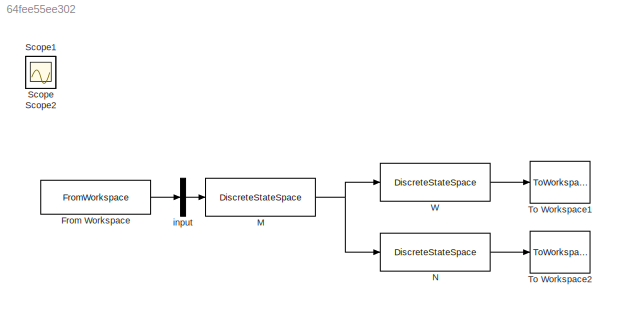
MODEL slx_64fee55ee302
KIND model
CONFIG AbsTol = auto
CONFIG EnableMultiTasking = off
CONFIG FixedStep = auto
CONFIG MaxStep = auto
CONFIG MinStep = auto
CONFIG RelTol = 1e-3
CONFIG SampleTimeConstraint = Unconstrained
CONFIG Solver = VariableStepAuto
CONFIG SolverName = VariableStepAuto
CONFIG StartTime = 0.0
CONFIG StopTime = Reference_time
BLOCK [FromWorkspace] From Workspace
  SampleTime = Ts
  VariableName = Reference_inputdata
  ZeroCross = on
BLOCK [DiscreteStateSpace] M
  A = plant.M.A
  B = plant.M.B
  C = plant.M.C
  D = plant.M.D
  SampleTime = -1
BLOCK [DiscreteStateSpace] N
  A = plant.N.A
  B = plant.N.B
  C = plant.N.C
  D = plant.N.D
  SampleTime = -1
BLOCK [Scope] Scope
  IOType = viewer
  NumInputPorts = 1
  Ports = []
  ScopeSpecificationString = Simulink.scopes.TimeScopeBlockCfg('CurrentConfiguration', extmgr.ConfigurationSet(extmgr.Configuration('Core','General UI',true),extmgr.Configuration('Core','Source UI',true),extmgr.Configuration('Sources','WiredSimulink',true),extmgr.Configuration('Visuals','Time Domain',true,'SerializedDisplays',{struct('MinYLimReal','-31.87499','MaxYLimReal','36.87499','YLabelReal','','MinYLimMag','0.00000','Ma...<+1331ch>
BLOCK [Scope] Scope1
  IOType = viewer
  NumInputPorts = 1
  Ports = []
  ScopeSpecificationString = Simulink.scopes.TimeScopeBlockCfg('CurrentConfiguration', extmgr.ConfigurationSet(extmgr.Configuration('Core','General UI',true),extmgr.Configuration('Core','Source UI',true),extmgr.Configuration('Sources','WiredSimulink',true,'DataLoggingVariableName','ScopeData1'),extmgr.Configuration('Visuals','Time Domain',true,'SerializedDisplays',{struct('MinYLimReal','-0.22956','MaxYLimReal','0.22937','YLab...<+1360ch>
BLOCK [Scope] Scope2
  IOType = viewer
  NumInputPorts = 1
  Ports = []
  ScopeSpecificationString = Simulink.scopes.TimeScopeBlockCfg('CurrentConfiguration', extmgr.ConfigurationSet(extmgr.Configuration('Core','General UI',true),extmgr.Configuration('Core','Source UI',true),extmgr.Configuration('Sources','WiredSimulink',true,'DataLoggingVariableName','ScopeData1'),extmgr.Configuration('Visuals','Time Domain',true,'SerializedDisplays',{struct('MinYLimReal','-0.00000000025','MaxYLimReal','0.000000...<+1408ch>
BLOCK [ToWorkspace] To Workspace1
  MaxDataPoints = inf
  Ports = [1]
  SampleTime = -1
  VariableName = zk
BLOCK [ToWorkspace] To Workspace2
  MaxDataPoints = inf
  Ports = [1]
  SampleTime = -1
  VariableName = vk
BLOCK [DiscreteStateSpace] W
  A = plant.W.A
  B = plant.W.B
  C = plant.W.C
  D = plant.W.D
  SampleTime = -1
BLOCK [Demux] input
  DisplayOption = bar
  Outputs = 1
  Ports = [1, 1]
LINE From Workspace:1 -> input:1
NET M:1 -> N:1, W:1
LINE N:1 -> To Workspace2:1
LINE W:1 -> To Workspace1:1
LINE input:1 -> M:1
note: NET lines group one-source signal fan-out (src -> all destinations, sorted); 1:1 wires keep LINE
